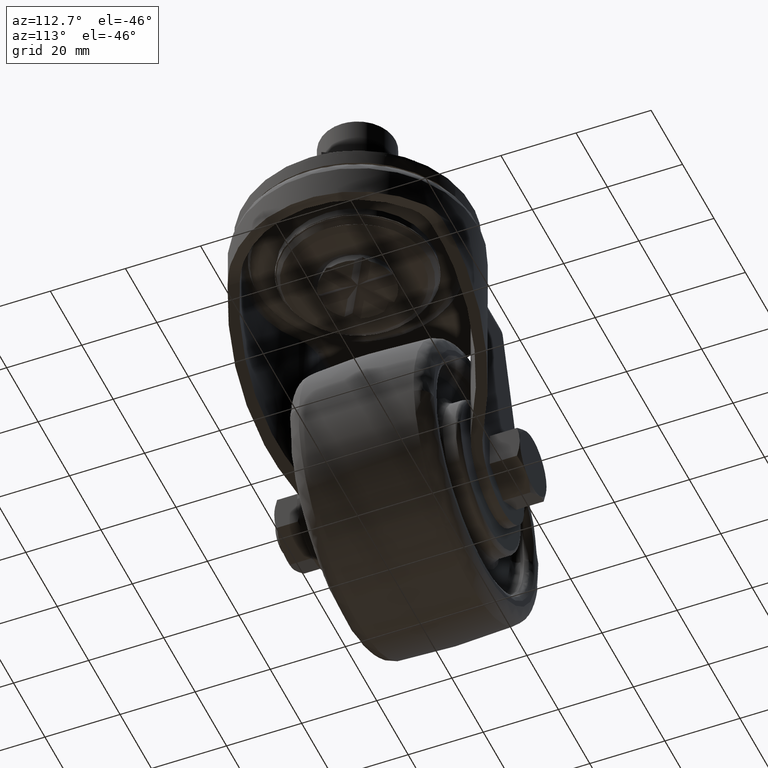
[diagram: clean part render]
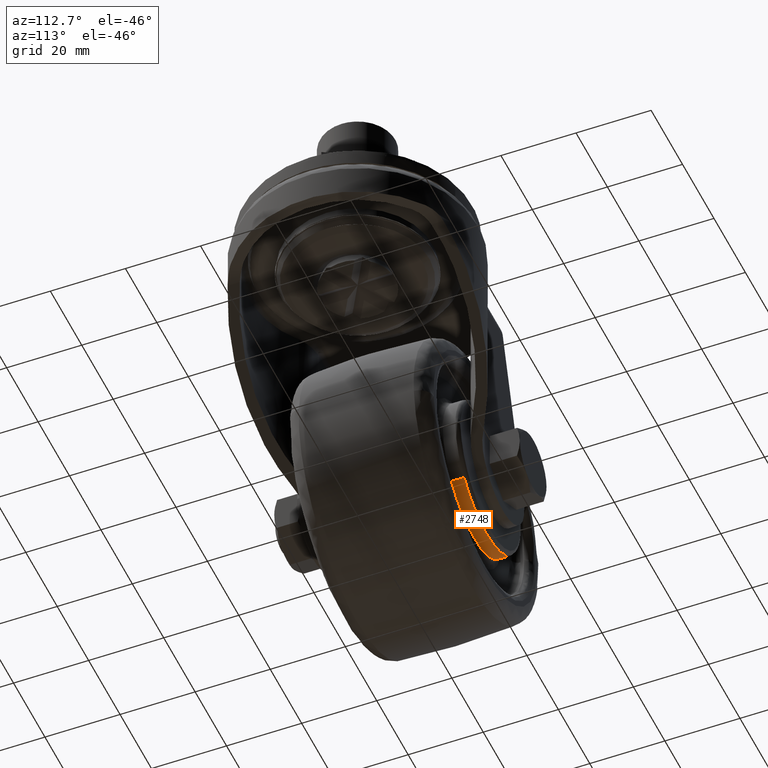
[diagram: same view with one face highlighted and labeled with its STEP entity id]
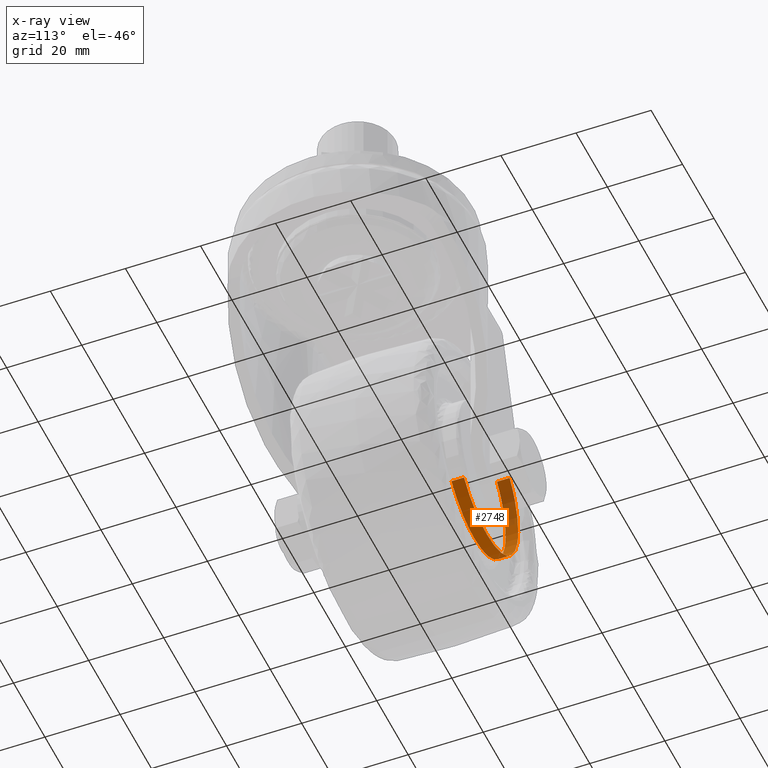
[diagram: x-ray of the same camera — body ghosted, the highlighted face saturated]
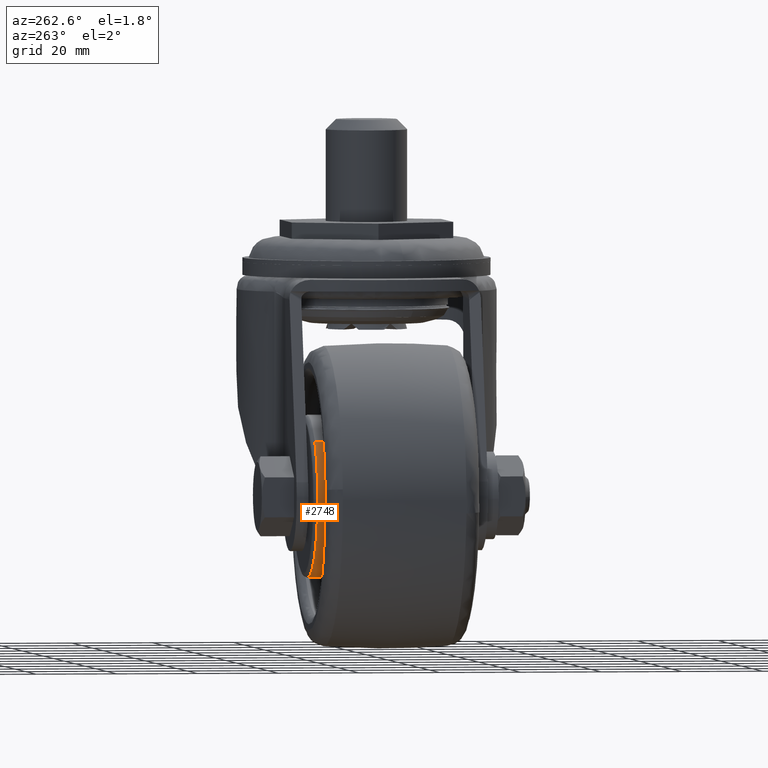
[diagram: same view with one face highlighted and labeled with its STEP entity id]
A machine part, auxiliary view. The second image highlights one B-rep face of the part: STEP entity #2748.
The next image is the same camera in x-ray: the body ghosted, the highlighted face saturated — about 26% of this face is hidden behind the body in this view.
A second angle (auxiliary view) of the same face is appended — the face is thin or edge-on in the first view.
In plain terms, the highlighted face is a freeform B-spline surface patch.
Its self-contained STEP definition (entity closure, byte-faithful):
#2296=CARTESIAN_POINT('',(-21.492498385793741,19.350000001180099,-76.267091309483433));
#2297=VERTEX_POINT('',#2296);
#2313=CARTESIAN_POINT('',(-35.999985999999900,19.350000000000001,-82.500000000000000));
#2314=VERTEX_POINT('',#2313);
#2315=CARTESIAN_POINT('',(-21.492498385793741,19.350000001180085,-76.267091309483448));
#2316=CARTESIAN_POINT('',(-27.407307713770525,19.350000000487057,-82.500000000000000));
#2317=CARTESIAN_POINT('',(-35.999985999999900,19.350000000000001,-82.500000000000000));
#2325=(BOUNDED_CURVE()B_SPLINE_CURVE(2,(#2315,#2316,#2317),.UNSPECIFIED.,.F.,.U.)B_SPLINE_CURVE_WITH_KNOTS((3,3),(0.371049524532890,0.500000000000000),.UNSPECIFIED.)CURVE()GEOMETRIC_REPRESENTATION_ITEM()RATIONAL_B_SPLINE_CURVE((0.853699661526886,0.848925120691652,1.0))REPRESENTATION_ITEM(''));
#2326=EDGE_CURVE('',#2297,#2314,#2325,.T.);
#2328=CARTESIAN_POINT('',(-55.998406884075017,19.350000002295989,-62.751320797763057));
#2329=VERTEX_POINT('',#2328);
#2330=CARTESIAN_POINT('',(-35.999985999999900,19.350000000000001,-82.500000000000000));
#2331=CARTESIAN_POINT('',(-55.750224598051361,19.350000001147990,-82.500000000000000));
#2332=CARTESIAN_POINT('',(-55.998406884075010,19.350000002295989,-62.751320797763057));
#2340=(BOUNDED_CURVE()B_SPLINE_CURVE(2,(#2330,#2331,#2332),.UNSPECIFIED.,.F.,.U.)B_SPLINE_CURVE_WITH_KNOTS((3,3),(0.500000000000000,0.747784295920884),.UNSPECIFIED.)CURVE()GEOMETRIC_REPRESENTATION_ITEM()RATIONAL_B_SPLINE_CURVE((1.0,0.709702639985229,0.994854295642069))REPRESENTATION_ITEM(''));
#2341=EDGE_CURVE('',#2314,#2329,#2340,.T.);
#2392=CARTESIAN_POINT('',(-50.507473614206077,19.350000001180099,-48.732908690516567));
#2393=VERTEX_POINT('',#2392);
#2394=CARTESIAN_POINT('',(-55.998406884075010,19.350000002295989,-62.751320797763057));
#2395=CARTESIAN_POINT('',(-55.999985999999907,19.350000002288862,-62.625665359885808));
#2396=CARTESIAN_POINT('',(-55.999985999999907,19.350000002281650,-62.499999999999993));
#2397=CARTESIAN_POINT('',(-55.999985999999900,19.350000001823652,-54.520809243837405));
#2398=CARTESIAN_POINT('',(-50.507473614206084,19.350000001180092,-48.732908690516552));
#2406=(BOUNDED_CURVE()B_SPLINE_CURVE(2,(#2394,#2395,#2396,#2397,#2398),.UNSPECIFIED.,.F.,.U.)B_SPLINE_CURVE_WITH_KNOTS((3,2,3),(0.747784295920884,0.750000000000000,0.871049524532890),.UNSPECIFIED.)CURVE()GEOMETRIC_REPRESENTATION_ITEM()RATIONAL_B_SPLINE_CURVE((0.994854295642069,0.997404141201318,1.0,0.858181660494895,0.853699661526886))REPRESENTATION_ITEM(''));
#2407=EDGE_CURVE('',#2329,#2393,#2406,.T.);
#2614=CARTESIAN_POINT('',(-50.507473611812799,15.999999999954060,-48.732908687994581));
#2615=VERTEX_POINT('',#2614);
#2616=CARTESIAN_POINT('',(-50.507473611812799,15.999999999954060,-48.732908687994581));
#2617=CARTESIAN_POINT('',(-50.507473614206077,19.350000001180099,-48.732908690516567));
#2618=QUASI_UNIFORM_CURVE('',1,(#2616,#2617),.UNSPECIFIED.,.F.,.U.);
#2619=EDGE_CURVE('',#2615,#2393,#2618,.T.);
#2651=CARTESIAN_POINT('',(-21.492498388187020,15.999999999954060,-76.267091312005434));
#2652=VERTEX_POINT('',#2651);
#2668=CARTESIAN_POINT('',(-21.492498388187020,15.999999999954060,-76.267091312005434));
#2669=CARTESIAN_POINT('',(-21.492498385793741,19.350000001180099,-76.267091309483433));
#2670=QUASI_UNIFORM_CURVE('',1,(#2668,#2669),.UNSPECIFIED.,.F.,.U.);
#2671=EDGE_CURVE('',#2652,#2297,#2670,.T.);
#2678=CARTESIAN_POINT('',(-21.492498579754159,15.916249999850990,-76.267091513875073));
#2679=CARTESIAN_POINT('',(-35.259590093629228,15.916249999850987,-90.774578934120825));
#2680=CARTESIAN_POINT('',(-49.767077513874973,15.916249999850990,-77.007487420245752));
#2681=CARTESIAN_POINT('',(-64.274564934120718,15.916249999850987,-63.240395906370679));
#2682=CARTESIAN_POINT('',(-50.507473420245653,15.916249999850990,-48.732908486124927));
#2683=CARTESIAN_POINT('',(-21.492498579754159,19.435843752357108,-76.267091513875073));
#2684=CARTESIAN_POINT('',(-35.259590093629228,19.435843752357115,-90.774578934120825));
#2685=CARTESIAN_POINT('',(-49.767077513874973,19.435843752357108,-77.007487420245752));
#2686=CARTESIAN_POINT('',(-64.274564934120718,19.435843752357115,-63.240395906370679));
#2687=CARTESIAN_POINT('',(-50.507473420245653,19.435843752357108,-48.732908486124927));
#2695=(BOUNDED_SURFACE()B_SPLINE_SURFACE(2,1,((#2678,#2683),(#2679,#2684),(#2680,#2685),(#2681,#2686),(#2682,#2687)),.UNSPECIFIED.,.F.,.F.,.U.)B_SPLINE_SURFACE_WITH_KNOTS((3,2,3),(2,2),(0.0,33.137084989847587,66.274169979695188),(0.0,3.519593752506124),.UNSPECIFIED.)GEOMETRIC_REPRESENTATION_ITEM()RATIONAL_B_SPLINE_SURFACE(((1.0,1.0),(0.707106781186548,0.707106781186548),(1.0,1.0),(0.707106781186548,0.707106781186548),(1.0,1.0)))REPRESENTATION_ITEM('')SURFACE());
#2696=ORIENTED_EDGE('',*,*,#2407,.F.);
#2697=ORIENTED_EDGE('',*,*,#2341,.F.);
#2698=ORIENTED_EDGE('',*,*,#2326,.F.);
#2699=ORIENTED_EDGE('',*,*,#2671,.F.);
#2700=CARTESIAN_POINT('',(-35.999985999999900,16.0,-82.500000000000000));
#2701=VERTEX_POINT('',#2700);
#2702=CARTESIAN_POINT('',(-21.492498388187016,15.999999999954058,-76.267091312005448));
#2703=CARTESIAN_POINT('',(-27.407307715829806,15.999999999981036,-82.500000000000014));
#2704=CARTESIAN_POINT('',(-35.999985999999900,16.0,-82.500000000000000));
#2712=(BOUNDED_CURVE()B_SPLINE_CURVE(2,(#2702,#2703,#2704),.UNSPECIFIED.,.F.,.U.)B_SPLINE_CURVE_WITH_KNOTS((3,3),(0.371049524559125,0.500000000000000),.UNSPECIFIED.)CURVE()GEOMETRIC_REPRESENTATION_ITEM()RATIONAL_B_SPLINE_CURVE((0.853699661524943,0.848925120722389,1.0))REPRESENTATION_ITEM(''));
#2713=EDGE_CURVE('',#2652,#2701,#2712,.T.);
#2714=ORIENTED_EDGE('',*,*,#2713,.T.);
#2715=CARTESIAN_POINT('',(-55.998406884075010,15.999999999910621,-62.751320797763640));
#2716=VERTEX_POINT('',#2715);
#2717=CARTESIAN_POINT('',(-35.999985999999900,16.0,-82.500000000000000));
#2718=CARTESIAN_POINT('',(-55.750224598050806,15.999999999955314,-82.500000000000000));
#2719=CARTESIAN_POINT('',(-55.998406884075010,15.999999999910621,-62.751320797763640));
#2727=(BOUNDED_CURVE()B_SPLINE_CURVE(2,(#2717,#2718,#2719),.UNSPECIFIED.,.F.,.U.)B_SPLINE_CURVE_WITH_KNOTS((3,3),(0.500000000000000,0.747784295920879),.UNSPECIFIED.)CURVE()GEOMETRIC_REPRESENTATION_ITEM()RATIONAL_B_SPLINE_CURVE((1.0,0.709702639985235,0.994854295642057))REPRESENTATION_ITEM(''));
#2728=EDGE_CURVE('',#2701,#2716,#2727,.T.);
#2729=ORIENTED_EDGE('',*,*,#2728,.T.);
#2730=CARTESIAN_POINT('',(-55.998406884075010,15.999999999910621,-62.751320797763640));
#2731=CARTESIAN_POINT('',(-55.999985999999907,15.999999999910901,-62.625665359886106));
#2732=CARTESIAN_POINT('',(-55.999985999999900,15.999999999911180,-62.500000000000007));
#2733=CARTESIAN_POINT('',(-55.999985999999907,15.999999999929008,-54.520809241822313));
#2734=CARTESIAN_POINT('',(-50.507473611812806,15.999999999954058,-48.732908687994581));
#2742=(BOUNDED_CURVE()B_SPLINE_CURVE(2,(#2730,#2731,#2732,#2733,#2734),.UNSPECIFIED.,.F.,.U.)B_SPLINE_CURVE_WITH_KNOTS((3,2,3),(0.747784295920879,0.750000000000000,0.871049524559125),.UNSPECIFIED.)CURVE()GEOMETRIC_REPRESENTATION_ITEM()RATIONAL_B_SPLINE_CURVE((0.994854295642057,0.997404141201312,1.0,0.858181660464159,0.853699661524943))REPRESENTATION_ITEM(''));
#2743=EDGE_CURVE('',#2716,#2615,#2742,.T.);
#2744=ORIENTED_EDGE('',*,*,#2743,.T.);
#2745=ORIENTED_EDGE('',*,*,#2619,.T.);
#2746=EDGE_LOOP('',(#2696,#2697,#2698,#2699,#2714,#2729,#2744,#2745));
#2747=FACE_OUTER_BOUND('',#2746,.T.);
#2748=ADVANCED_FACE('',(#2747),#2695,.T.);